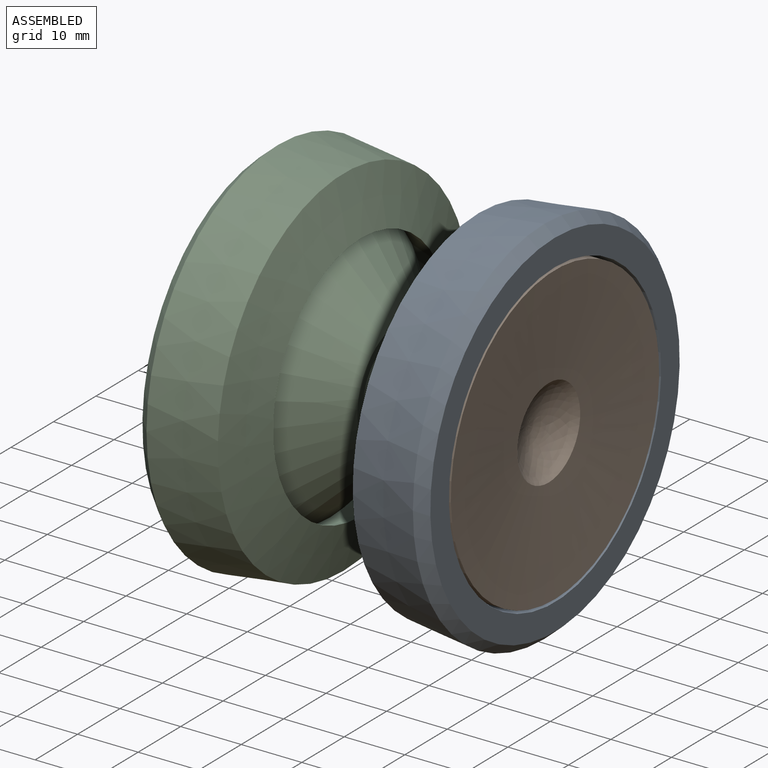
[diagram: assembled view]
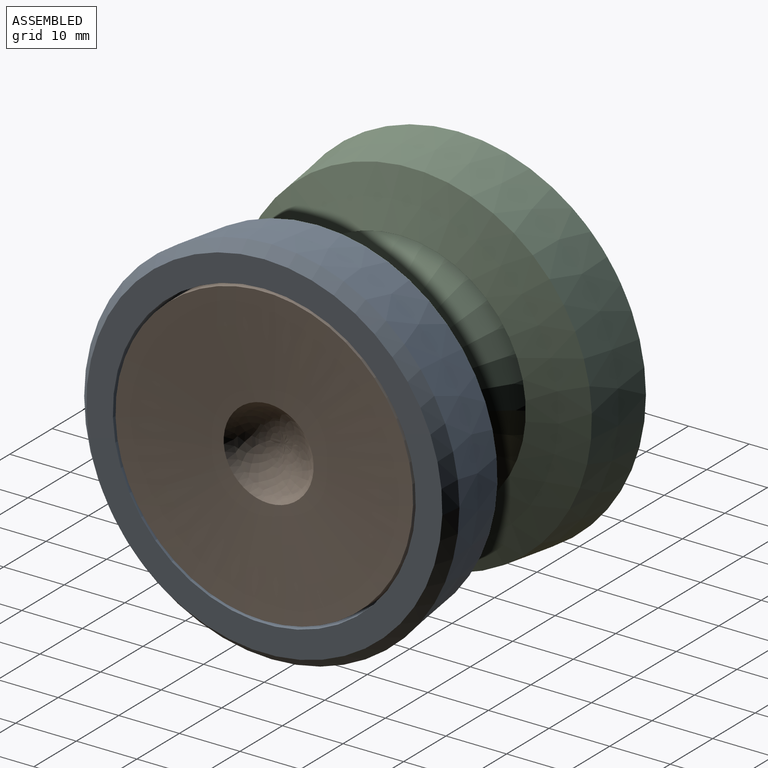
[diagram: assembled view, second angle]
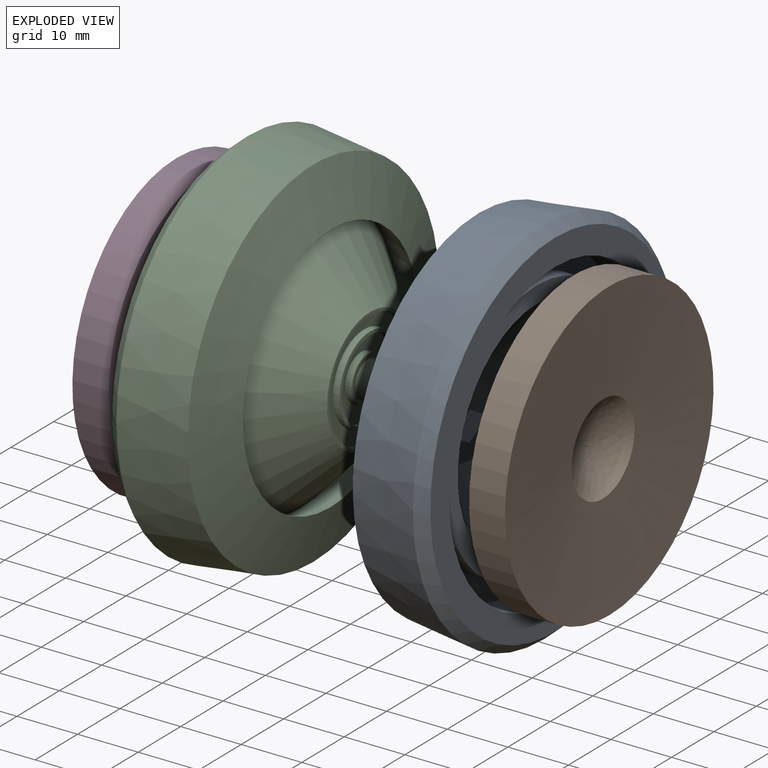
[diagram: exploded view]
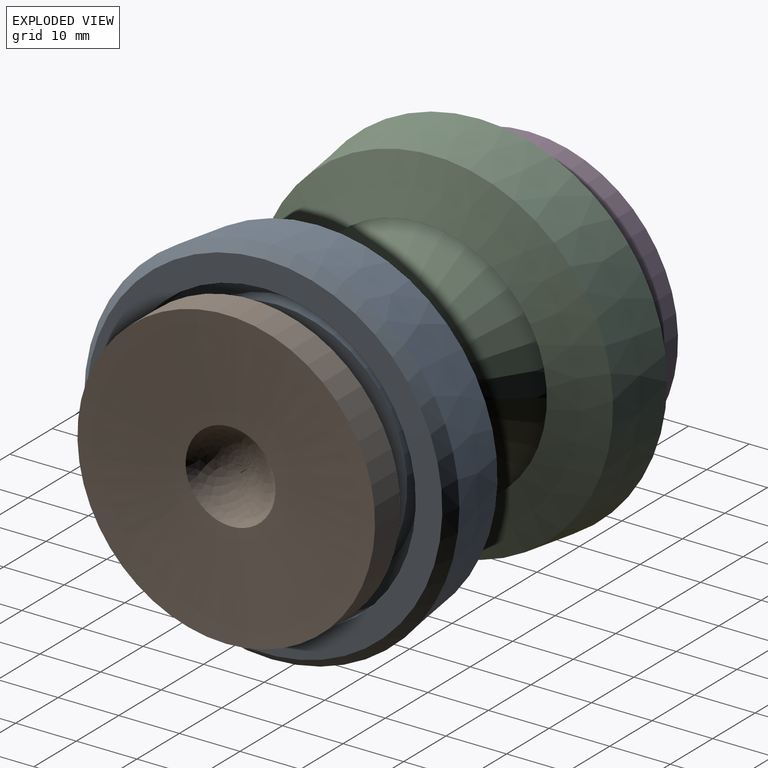
[diagram: exploded view, second angle]
ASSEMBLY  parts=4 mates=3
PART A: 33 faces, bbox 23.8x61.9x61.9 mm
  f0: cylinder r=2.2mm len=6.63mm, axis (1,0,0), area 91.7mm2, adj f15,f32
  f1: cone r=22.28mm half-angle=46.2deg, axis (-1,0,0), area 1711mm2, adj f2,f25
  f2: cone r=21.31mm half-angle=16.4deg, axis (-1,0,0), area 468.5mm2, adj f1,f3
  f3: cone r=20.73mm half-angle=18deg, axis (-1,0,0), area 251.1mm2, adj f2,f4
  f4: cone r=20.73mm half-angle=72.3deg, axis (-1,0,0), area 1481.4mm2, adj f3,f5
  f5: cone r=30.96mm half-angle=6.9deg, axis (-1,0,0), area 2080.7mm2, adj f4,f6
  f6: cone r=29.39mm half-angle=41.6deg, axis (1,0,0), area 449.7mm2, adj f5,f7
  f7: plane 58.77x58.77mm, normal (-1,0,0), area 749.4mm2, adj f6,f8
  f8: cylinder r=25mm len=50mm, axis (1,0,0), area 934.3mm2, adj f7,f9
  f9: plane 50x50mm, normal (-1,0,0), area 511.3mm2, adj f8,f10
  f10: cylinder r=21.5mm len=43mm, axis (1,0,0), area 401.8mm2, adj f9,f11
  f11: plane 43x43mm, normal (-1,0,0), area 354.4mm2, adj f10,f12
  f12: cylinder r=18.69mm len=37.39mm, axis (1,0,0), area 349.3mm2, adj f11,f13
  f13: cone r=18.69mm half-angle=53.5deg, axis (-1,0,0), area 1137.1mm2, adj f12,f14
  f14: plane 15.28x15.28mm, normal (-1,0,0), area 118.5mm2, adj f13,f26,f27,f28,f29,f30,f31
  f15: plane 6x6mm, normal (1,0,0), area 13.1mm2, adj f0,f16
  f16: cylinder r=3mm len=6mm, axis (1,0,0), area 40.1mm2, adj f15,f17
  f17: plane 7.6x7.6mm, normal (1,0,0), area 17.1mm2, adj f16,f18
  f18: cylinder r=3.8mm len=7.6mm, axis (1,0,0), area 26.9mm2, adj f17,f19
  f19: plane 13.3x13.3mm, normal (1,0,0), area 93.6mm2, adj f18,f20
  f20: cylinder r=6.65mm len=13.3mm, axis (1,0,0), area 62.7mm2, adj f19,f21
  f21: plane 14.5x14.5mm, normal (1,0,0), area 26.2mm2, adj f20,f22
  f22: cylinder r=7.25mm len=14.5mm, axis (1,0,0), area 49mm2, adj f21,f23
  f23: plane 19.3x19.3mm, normal (1,0,0), area 127.4mm2, adj f22,f24
  f24: cylinder r=9.65mm len=19.3mm, axis (1,0,0), area 65.2mm2, adj f23,f25
  f25: plane 20.3x20.3mm, normal (1,0,0), area 31.1mm2, adj f1,f24
  f26: plane 4.33x3mm, normal (0,-0.5,0.87), area 15mm2, adj f14,f27,f31,f32
  f27: plane 4.33x3mm, normal (0,0.5,0.87), area 15mm2, adj f14,f26,f28,f32
  f28: plane 5x3mm, normal (0,1,0), area 15mm2, adj f14,f27,f29,f32
  f29: plane 4.33x3mm, normal (0,0.5,-0.87), area 15mm2, adj f14,f28,f30,f32
  f30: plane 4.33x3mm, normal (0,-0.5,-0.87), area 15mm2, adj f14,f29,f31,f32
  f31: plane 5x3mm, normal (0,-1,0), area 15mm2, adj f14,f26,f30,f32
  f32: plane 10x8.66mm, normal (-1,0,0), area 49.7mm2, adj f0,f26,f27,f28,f29,f30,f31
PART B: 7 faces, bbox 5.9x49.1x49.1 mm
  f0: revolved ~14.85x14.85mm, area 214.4mm2, adj f6
  f1: sphere r=14.2mm, area 187mm2, adj f2
  f2: cone r=21.92mm half-angle=86.5deg, axis (-1,0,0), area 1338.3mm2, adj f1,f3
  f3: cylinder r=21.92mm len=43.83mm, axis (-1,0,0), area 409.5mm2, adj f2,f4
  f4: plane 49.1x49.1mm, normal (1,0,0), area 384.6mm2, adj f3,f5
  f5: cylinder r=24.55mm len=49.1mm, axis (-1,0,0), area 917.5mm2, adj f4,f6
  f6: cone r=24.55mm half-angle=86.5deg, axis (-1,0,0), area 1723.6mm2, adj f0,f5
PART C: same geometry as A
PART D: same geometry as B
PLACE A rot(axis=(0,1,0),180deg) t=(34.82,-1.51,13.1)mm
PLACE B rot(axis=(0,1,0),180deg) t=(57.82,-1.51,13.1)mm
PLACE C t=(33.32,-1.51,13.1)mm
PLACE D t=(10.32,-1.51,13.1)mm
MATE fastened D.f3 <-> C.f0  axis (1,0,0) through (16.27,-1.51,13.1)mm
MATE fastened A.f0 <-> C.f0  axis (-1,0,0) through (34.07,-1.51,13.1)mm
MATE fastened B.f3 <-> A.f0  axis (-1,0,0) through (51.88,-1.51,13.1)mm
